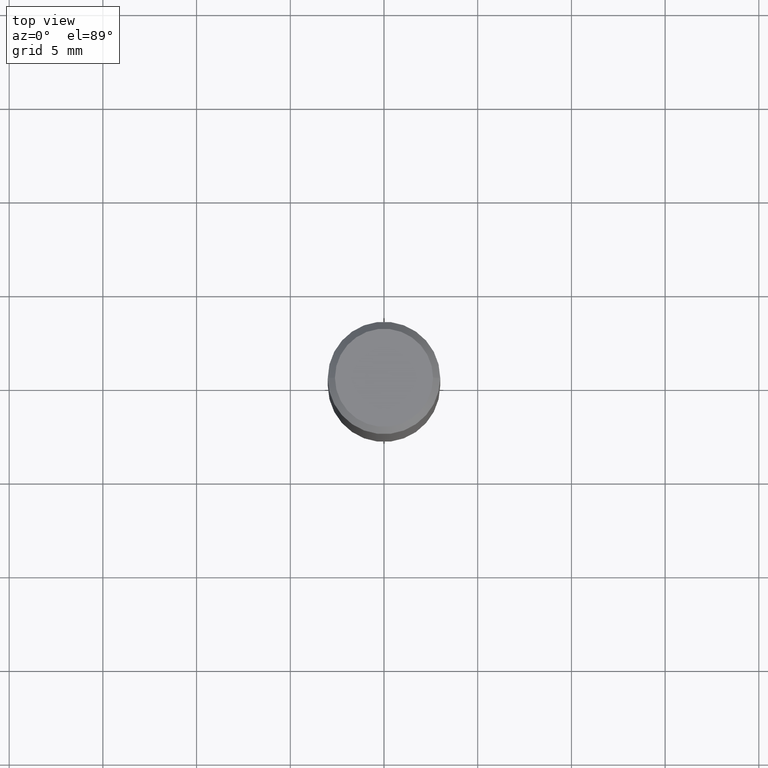
[diagram: clean part render]
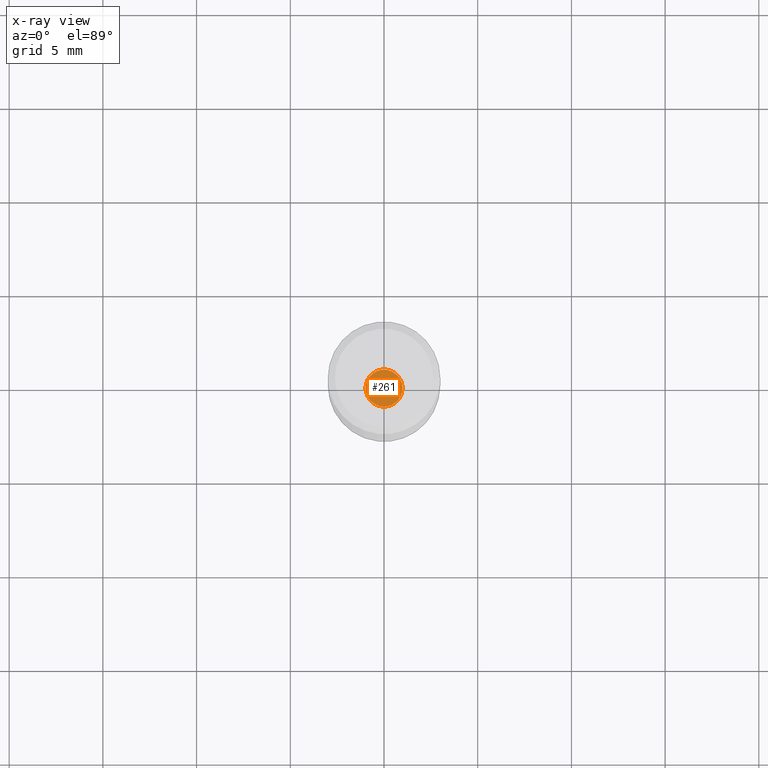
[diagram: x-ray — body ghosted, one internal face saturated and labeled with its STEP entity id]
A machine part, top view, then the same camera in x-ray: the body is ghosted and one INTERNAL B-rep face — a face not visible from any outside direction — is saturated and labeled: STEP entity #261.
In plain terms, the highlighted planar face has unit normal (-0, 0, 1).
Its self-contained STEP definition (entity closure, byte-faithful):
#21 = CARTESIAN_POINT ( 'NONE',  ( -0.03885000000000000259, -4.133839036013058638E-15, -1.263800000000000034 ) ) ;
#29 = FACE_OUTER_BOUND ( 'NONE', #185, .T. ) ;
#35 = CARTESIAN_POINT ( 'NONE',  ( 3.090583477256776013E-29, -4.412534116029967548E-15, -1.263800000000000034 ) ) ;
#47 = EDGE_CURVE ( 'NONE', #344, #59, #456, .T. ) ;
#53 = PLANE ( 'NONE',  #413 ) ;
#59 = VERTEX_POINT ( 'NONE', #21 ) ;
#69 = AXIS2_PLACEMENT_3D ( 'NONE', #150, #254, #328 ) ;
#82 = DIRECTION ( 'NONE',  ( 1.000000000000000000, -6.982962677686256455E-15, 0.000000000000000000 ) ) ;
#128 = CARTESIAN_POINT ( 'NONE',  ( 0.03885000000000000259, -4.683822216058078668E-15, -1.263800000000000034 ) ) ;
#144 = DIRECTION ( 'NONE',  ( -2.445468806185136597E-29, 3.491481338843145583E-15, 1.000000000000000000 ) ) ;
#146 = EDGE_CURVE ( 'NONE', #59, #344, #165, .T. ) ;
#150 = CARTESIAN_POINT ( 'NONE',  ( 3.090583477256776013E-29, -4.412534116029967548E-15, -1.263800000000000034 ) ) ;
#165 = CIRCLE ( 'NONE', #69, 0.03885000000000000259 ) ;
#185 = EDGE_LOOP ( 'NONE', ( #448, #408 ) ) ;
#229 = DIRECTION ( 'NONE',  ( -2.438088387897960049E-29, 3.491481338843145188E-15, 1.000000000000000000 ) ) ;
#254 = DIRECTION ( 'NONE',  ( -2.445468806185136597E-29, 3.491481338843145583E-15, 1.000000000000000000 ) ) ;
#261 = ADVANCED_FACE ( 'NONE', ( #29 ), #53, .F. ) ;
#300 = CARTESIAN_POINT ( 'NONE',  ( 3.090583477256776013E-29, -4.412534116029967548E-15, -1.263800000000000034 ) ) ;
#301 = AXIS2_PLACEMENT_3D ( 'NONE', #35, #144, #82 ) ;
#328 = DIRECTION ( 'NONE',  ( 1.000000000000000000, -6.982962677686256455E-15, 0.000000000000000000 ) ) ;
#337 = DIRECTION ( 'NONE',  ( 1.000000000000000000, -6.982962677686265922E-15, 4.876176775795935793E-29 ) ) ;
#344 = VERTEX_POINT ( 'NONE', #128 ) ;
#408 = ORIENTED_EDGE ( 'NONE', *, *, #146, .F. ) ;
#413 = AXIS2_PLACEMENT_3D ( 'NONE', #300, #229, #337 ) ;
#448 = ORIENTED_EDGE ( 'NONE', *, *, #47, .F. ) ;
#456 = CIRCLE ( 'NONE', #301, 0.03885000000000000259 ) ;